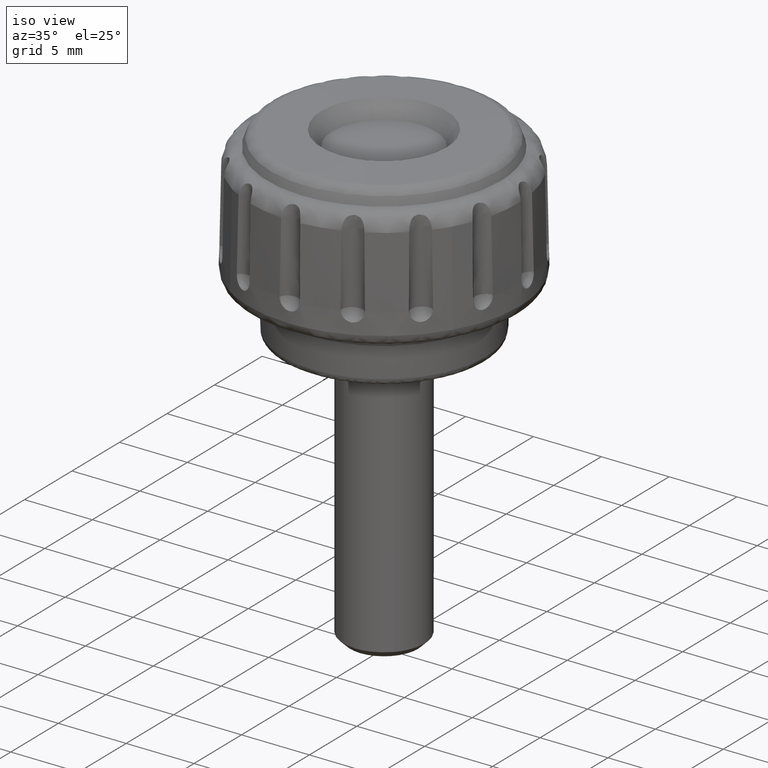
[diagram: clean part render]
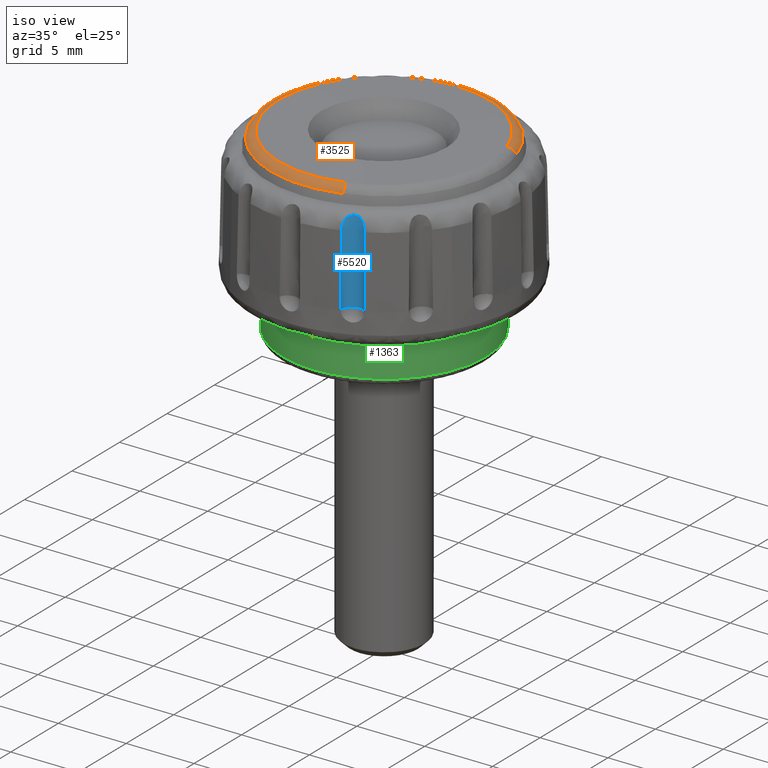
[diagram: same view with three faces highlighted in distinct colors, each labeled with its STEP entity id]
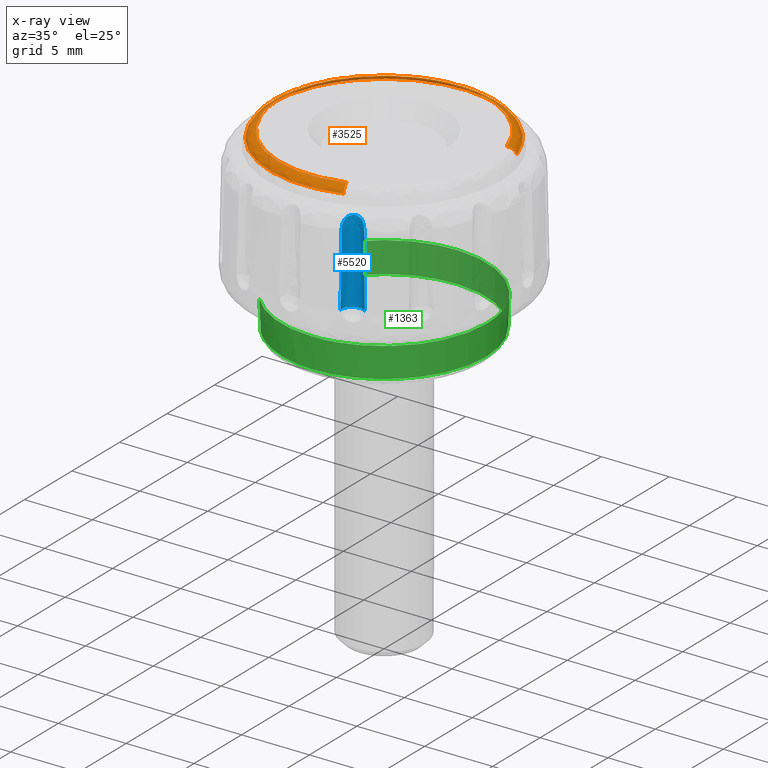
[diagram: x-ray of the same camera — body ghosted, the three highlighted faces saturated]
A machine part, iso view with three faces highlighted in distinct colors.
The next image is the same camera in x-ray (body ghosted, the three faces saturated) — at least one of them is partly hidden behind the body in this view.
Their STEP definitions:

[orange] entity #3525 — the highlighted face is a freeform B-spline surface patch.
#1694=CARTESIAN_POINT('',(5.414821336873560,6.402738464486085,13.389539658126751));
#1695=VERTEX_POINT('',#1694);
#1696=CARTESIAN_POINT('',(7.975012947704043,2.591238784501803,13.389539658211490));
#1697=VERTEX_POINT('',#1696);
#1698=CARTESIAN_POINT('',(5.414821336873560,6.402738464486085,13.389539658126751));
#1699=CARTESIAN_POINT('',(5.692270043470310,6.168116192450658,13.389539658133700));
#1700=CARTESIAN_POINT('',(6.199107883033925,5.679564921565262,13.389539658147280));
#1701=CARTESIAN_POINT('',(6.945154094198713,4.753563351705484,13.389539658169550));
#1702=CARTESIAN_POINT('',(7.548274298740307,3.726090637282110,13.389539658191190));
#1703=CARTESIAN_POINT('',(7.862738193179157,2.936809116481841,13.389539658205591));
#1704=CARTESIAN_POINT('',(7.975012947704043,2.591238784501803,13.389539658211490));
#1705=B_SPLINE_CURVE_WITH_KNOTS('',3,(#1698,#1699,#1700,#1701,#1702,#1703,#1704),.UNSPECIFIED.,.F.,.U.,(4,1,1,1,4),(1.895869E-009,1.090058220259982,2.107448491156674,3.560857228271222,4.650915446635560),.UNSPECIFIED.);
#1706=EDGE_CURVE('',#1695,#1697,#1705,.T.);
#1718=CARTESIAN_POINT('',(2.591238784496045,-7.975012947737337,13.389539658129380));
#1719=VERTEX_POINT('',#1718);
#1735=CARTESIAN_POINT('',(-8.385424852422510,0.0,13.389539658003200));
#1736=VERTEX_POINT('',#1735);
#1737=CARTESIAN_POINT('',(2.591238784496045,-7.975012947737337,13.389539658129380));
#1738=CARTESIAN_POINT('',(2.101914565130405,-8.134062774378068,13.389539658119100));
#1739=CARTESIAN_POINT('',(1.154358657495383,-8.347977684298479,13.389539658099890));
#1740=CARTESIAN_POINT('',(-0.206803470529369,-8.414849852517959,13.389539658074611));
#1741=CARTESIAN_POINT('',(-1.356173428928150,-8.297355528707742,13.389539658054909));
#1742=CARTESIAN_POINT('',(-2.420596873479457,-8.051454132313634,13.389539658037730));
#1743=CARTESIAN_POINT('',(-3.350113227359907,-7.709843182778731,13.389539658024370));
#1744=CARTESIAN_POINT('',(-4.193704848513966,-7.277377770061983,13.389539658012369));
#1745=CARTESIAN_POINT('',(-4.938137706932062,-6.796961480538122,13.389539658004249));
#1746=CARTESIAN_POINT('',(-5.771870893636117,-6.123003543632566,13.389539657994280));
#1747=CARTESIAN_POINT('',(-6.558051483438312,-5.274596795407038,13.389539657988349));
#1748=CARTESIAN_POINT('',(-7.175225603682568,-4.372601394976647,13.389539657985170));
#1749=CARTESIAN_POINT('',(-7.601606209990404,-3.572523727590739,13.389539657984860));
#1750=CARTESIAN_POINT('',(-7.985787388006455,-2.638647478839822,13.389539657986081));
#1751=CARTESIAN_POINT('',(-8.301536928928821,-1.440647911548090,13.389539657992220));
#1752=CARTESIAN_POINT('',(-8.385464570237801,-0.493941349584060,13.389539657998100));
#1753=CARTESIAN_POINT('',(-8.385424852422510,0.0,13.389539658003200));
#1754=B_SPLINE_CURVE_WITH_KNOTS('',3,(#1737,#1738,#1739,#1740,#1741,#1742,#1743,#1744,#1745,#1746,#1747,#1748,#1749,#1750,#1751,#1752,#1753),.UNSPECIFIED.,.F.,.U.,(4,1,1,1,1,1,1,1,1,1,1,1,1,1,4),(7.043008E-009,1.543563370954519,2.901913743118245,4.075033916520443,5.001179717777895,6.174293965447166,7.038698785974511,7.841354916268639,8.829235759516969,10.249321594123311,11.298955682087261,12.101614565872779,12.966019264739391,14.324369073423680,15.806189173172751),.UNSPECIFIED.);
#1755=EDGE_CURVE('',#1719,#1736,#1754,.T.);
#1757=CARTESIAN_POINT('',(-6.082572278006696,5.772145566310559,13.389539657965649));
#1758=VERTEX_POINT('',#1757);
#1759=CARTESIAN_POINT('',(-8.385424852422510,0.0,13.389539658003200));
#1760=CARTESIAN_POINT('',(-8.385520223324088,0.580276096392478,13.389539657996041));
#1761=CARTESIAN_POINT('',(-8.273100137228353,1.657874707127856,13.389539657984381));
#1762=CARTESIAN_POINT('',(-7.825605130125708,3.122352468292502,13.389539657972771));
#1763=CARTESIAN_POINT('',(-7.131122540664201,4.504492578265316,13.389539657966040));
#1764=CARTESIAN_POINT('',(-6.493489455450496,5.339270169290322,13.389539657964940));
#1765=CARTESIAN_POINT('',(-6.082572278006696,5.772145566310559,13.389539657965649));
#1766=B_SPLINE_CURVE_WITH_KNOTS('',3,(#1759,#1760,#1761,#1762,#1763,#1764,#1765),.UNSPECIFIED.,.F.,.U.,(4,1,1,1,4),(3.802307E-009,1.740806810639394,3.232920822088767,4.575832440998095,6.366376701414596),.UNSPECIFIED.);
#1767=EDGE_CURVE('',#1736,#1758,#1766,.T.);
#1868=CARTESIAN_POINT('',(-6.082572278006696,5.772145566310559,13.389539657965649));
#1869=CARTESIAN_POINT('',(-5.832314974260923,6.035878601163017,13.389539657966051));
#1870=CARTESIAN_POINT('',(-5.285267559768599,6.541967546954047,13.389539657967861));
#1871=CARTESIAN_POINT('',(-4.499752625833379,7.095098337867120,13.389539657972589));
#1872=CARTESIAN_POINT('',(-3.704606732651509,7.536823972230909,13.389539657978640));
#1873=CARTESIAN_POINT('',(-2.885765491910017,7.895154719369325,13.389539657986370));
#1874=CARTESIAN_POINT('',(-1.727750953757883,8.242394144703827,13.389539657999180));
#1875=CARTESIAN_POINT('',(-0.477077991373110,8.408020034399574,13.389539658015410));
#1876=CARTESIAN_POINT('',(0.681739393871548,8.375517388026280,13.389539658032870));
#1877=CARTESIAN_POINT('',(1.599123440573961,8.245938485486233,13.389539658047790));
#1878=CARTESIAN_POINT('',(2.627738801660113,7.993367047022104,13.389539658066480));
#1879=CARTESIAN_POINT('',(3.966731282316822,7.454330460577391,13.389539658091630));
#1880=CARTESIAN_POINT('',(4.922784360844830,6.819042411824140,13.389539658115361));
#1881=CARTESIAN_POINT('',(5.414821336873560,6.402738464486085,13.389539658126751));
#1882=B_SPLINE_CURVE_WITH_KNOTS('',3,(#1868,#1869,#1870,#1871,#1872,#1873,#1874,#1875,#1876,#1877,#1878,#1879,#1880,#1881),.UNSPECIFIED.,.F.,.U.,(4,1,1,1,1,1,1,1,1,1,1,4),(0.000000014604066,1.090713818442433,2.231006416898804,2.875524075187183,3.817509027033593,4.908229531955397,6.494710224431278,7.585427307883298,8.378682247765443,9.271086721831788,10.758432554126241,12.691969510726810),.UNSPECIFIED.);
#1883=EDGE_CURVE('',#1758,#1695,#1882,.T.);
#3413=CARTESIAN_POINT('',(2.384433441770142,-7.338531549226091,13.850030545256441));
#3414=CARTESIAN_POINT('',(-4.954098107455950,-9.722964990996232,13.850030545256441));
#3415=CARTESIAN_POINT('',(-7.338531549226091,-2.384433441770143,13.850030545256441));
#3416=CARTESIAN_POINT('',(-9.722964990996232,4.954098107455950,13.850030545256441));
#3417=CARTESIAN_POINT('',(-2.384433441770143,7.338531549226091,13.850030545256441));
#3418=CARTESIAN_POINT('',(4.954098107455947,9.722964990996232,13.850030545256441));
#3419=CARTESIAN_POINT('',(7.338531549226091,2.384433441770144,13.850030545256441));
#3420=CARTESIAN_POINT('',(2.547726725202221,-7.841096599376293,13.858676634144937));
#3421=CARTESIAN_POINT('',(-5.293369874174072,-10.388823324578514,13.858676634144933));
#3422=CARTESIAN_POINT('',(-7.841096599376293,-2.547726725202221,13.858676634144937));
#3423=CARTESIAN_POINT('',(-10.388823324578514,5.293369874174072,13.858676634144933));
#3424=CARTESIAN_POINT('',(-2.547726725202221,7.841096599376293,13.858676634144937));
#3425=CARTESIAN_POINT('',(5.293369874174069,10.388823324578514,13.858676634144933));
#3426=CARTESIAN_POINT('',(7.841096599376293,2.547726725202223,13.858676634144937));
#3427=CARTESIAN_POINT('',(2.595017006581148,-7.986641119844603,13.352819438141628));
#3428=CARTESIAN_POINT('',(-5.391624113263453,-10.581658126425751,13.352819438141628));
#3429=CARTESIAN_POINT('',(-7.986641119844603,-2.595017006581149,13.352819438141628));
#3430=CARTESIAN_POINT('',(-10.581658126425751,5.391624113263453,13.352819438141628));
#3431=CARTESIAN_POINT('',(-2.595017006581149,7.986641119844603,13.352819438141628));
#3432=CARTESIAN_POINT('',(5.391624113263453,10.581658126425751,13.352819438141628));
#3433=CARTESIAN_POINT('',(7.986641119844603,2.595017006581149,13.352819438141628));
#3441=(BOUNDED_SURFACE()B_SPLINE_SURFACE(2,2,((#3413,#3420,#3427),(#3414,#3421,#3428),(#3415,#3422,#3429),(#3416,#3423,#3430),(#3417,#3424,#3431),(#3418,#3425,#3432),(#3419,#3426,#3433)),.UNSPECIFIED.,.F.,.F.,.U.)B_SPLINE_SURFACE_WITH_KNOTS((3,2,2,3),(3,3),(0.0,13.913684467599440,27.827368935198880,41.741053402798329),(0.0,0.938299722555659),.UNSPECIFIED.)GEOMETRIC_REPRESENTATION_ITEM()RATIONAL_B_SPLINE_SURFACE(((0.921574484694217,0.734439610332397,0.918941042594707),(0.651651567495779,0.519327228838043,0.649789442729353),(0.921574484694217,0.734439610332397,0.918941042594707),(0.651651567495779,0.519327228838043,0.649789442729353),(0.921574484694217,0.734439610332397,0.918941042594707),(0.651651567495779,0.519327228838043,0.649789442729353),(0.921574484694217,0.734439610332397,0.918941042594707)))REPRESENTATION_ITEM('')SURFACE());
#3442=ORIENTED_EDGE('',*,*,#1755,.F.);
#3443=CARTESIAN_POINT('',(2.396359510683250,-7.375236211573055,13.849597830774400));
#3444=VERTEX_POINT('',#3443);
#3445=CARTESIAN_POINT('',(2.396359510683250,-7.375236211573055,13.849597830774400));
#3446=CARTESIAN_POINT('',(2.415004474062089,-7.432619508879011,13.847272557840579));
#3447=CARTESIAN_POINT('',(2.449451199699297,-7.538635630090705,13.828320594003660));
#3448=CARTESIAN_POINT('',(2.496216768917148,-7.682565253545984,13.762827638112260));
#3449=CARTESIAN_POINT('',(2.536300537211601,-7.805930408035989,13.668203599241490));
#3450=CARTESIAN_POINT('',(2.569530505301871,-7.908201734196592,13.542960693970620));
#3451=CARTESIAN_POINT('',(2.585316163527856,-7.956784994710094,13.442228860525439));
#3452=CARTESIAN_POINT('',(2.591238784496045,-7.975012947737337,13.389539658129380));
#3453=B_SPLINE_CURVE_WITH_KNOTS('',3,(#3445,#3446,#3447,#3448,#3449,#3450,#3451,#3452),.UNSPECIFIED.,.F.,.U.,(4,1,1,1,1,4),(0.000000033017601,0.181140313862165,0.336405627196721,0.491667529644384,0.659872759382642,0.828073123823436),.UNSPECIFIED.);
#3454=EDGE_CURVE('',#3444,#1719,#3453,.T.);
#3455=ORIENTED_EDGE('',*,*,#3454,.F.);
#3456=CARTESIAN_POINT('',(-7.754782240562751,0.0,13.849597831981299));
#3457=VERTEX_POINT('',#3456);
#3458=CARTESIAN_POINT('',(2.396359510683250,-7.375236211573055,13.849597830774400));
#3459=CARTESIAN_POINT('',(1.943836306092066,-7.522326076957984,13.849597830873099));
#3460=CARTESIAN_POINT('',(1.160763701328386,-7.699090299841733,13.849597831036620));
#3461=CARTESIAN_POINT('',(0.133306011114217,-7.768529684173184,13.849597831235821));
#3462=CARTESIAN_POINT('',(-0.704325518175037,-7.735618226231230,13.849597831389760));
#3463=CARTESIAN_POINT('',(-1.535011161841607,-7.619683510828196,13.849597831534529));
#3464=CARTESIAN_POINT('',(-2.549588780271728,-7.353635523636700,13.849597831699660));
#3465=CARTESIAN_POINT('',(-3.462999123017084,-6.963413063965188,13.849597831834050));
#3466=CARTESIAN_POINT('',(-4.267208487202566,-6.489360511922109,13.849597831940070));
#3467=CARTESIAN_POINT('',(-4.945631792291952,-5.996478202576391,13.849597832020770));
#3468=CARTESIAN_POINT('',(-5.589951846819381,-5.400869471411132,13.849597832085241));
#3469=CARTESIAN_POINT('',(-6.208831348753225,-4.676261732193892,13.849597832133121));
#3470=CARTESIAN_POINT('',(-6.696311991008103,-3.946688762581557,13.849597832155110));
#3471=CARTESIAN_POINT('',(-7.163555114844384,-3.029707298468995,13.849597832156590));
#3472=CARTESIAN_POINT('',(-7.480796722871202,-2.129175443322603,13.849597832130909));
#3473=CARTESIAN_POINT('',(-7.703155348230171,-1.065842757252812,13.849597832072270));
#3474=CARTESIAN_POINT('',(-7.754809551931253,-0.399694048500855,13.849597832019031));
#3475=CARTESIAN_POINT('',(-7.754782240562751,0.0,13.849597831981299));
#3476=B_SPLINE_CURVE_WITH_KNOTS('',3,(#3458,#3459,#3460,#3461,#3462,#3463,#3464,#3465,#3466,#3467,#3468,#3469,#3470,#3471,#3472,#3473,#3474,#3475),.UNSPECIFIED.,.F.,.U.,(4,1,1,1,1,1,1,1,1,1,1,1,1,1,1,4),(0.000000012705033,1.427477347091116,2.398170500541786,3.083367242094488,3.939861561820152,4.910556470004606,6.223844008090383,6.909043575691629,7.708410447495186,8.736204223587841,9.535597656319936,10.563393764244280,11.362786013465010,12.618973437305980,13.418373250395840,14.617453181398290),.UNSPECIFIED.);
#3477=EDGE_CURVE('',#3444,#3457,#3476,.T.);
#3478=ORIENTED_EDGE('',*,*,#3477,.T.);
#3479=CARTESIAN_POINT('',(7.375236206335931,2.396359508729125,13.849597830991099));
#3480=VERTEX_POINT('',#3479);
#3481=CARTESIAN_POINT('',(-7.754782240562751,0.0,13.849597831981299));
#3482=CARTESIAN_POINT('',(-7.754788769488837,0.299768890629783,13.849597832000381));
#3483=CARTESIAN_POINT('',(-7.716668641293842,0.956407040254186,13.849597832039169));
#3484=CARTESIAN_POINT('',(-7.550856175334747,1.842477838378515,13.849597832083161));
#3485=CARTESIAN_POINT('',(-7.271251933157443,2.743262848363950,13.849597832118871));
#3486=CARTESIAN_POINT('',(-6.937330506236038,3.502867875438908,13.849597832142500));
#3487=CARTESIAN_POINT('',(-6.441079625953957,4.354949578983443,13.849597832158780));
#3488=CARTESIAN_POINT('',(-5.867982799944887,5.106282281542965,13.849597832163520));
#3489=CARTESIAN_POINT('',(-5.138869150237608,5.833132203581564,13.849597832154490));
#3490=CARTESIAN_POINT('',(-4.349352241494106,6.448904487998877,13.849597832134330));
#3491=CARTESIAN_POINT('',(-3.446390592680822,6.974427677339782,13.849597832099141));
#3492=CARTESIAN_POINT('',(-2.533015368464956,7.348809065280794,13.849597832054350));
#3493=CARTESIAN_POINT('',(-1.568735692067749,7.615984698510808,13.849597831998100));
#3494=CARTESIAN_POINT('',(-0.647840529890849,7.748842972037976,13.849597831937579));
#3495=CARTESIAN_POINT('',(0.395520485978719,7.765804044402158,13.849597831859370));
#3496=CARTESIAN_POINT('',(1.277585311588116,7.667718511852957,13.849597831786580));
#3497=CARTESIAN_POINT('',(2.154182240087069,7.462930175042754,13.849597831707641));
#3498=CARTESIAN_POINT('',(2.898354525006386,7.208961207574085,13.849597831634631));
#3499=CARTESIAN_POINT('',(3.792178998954449,6.791932506587036,13.849597831541340));
#3500=CARTESIAN_POINT('',(4.659409356812392,6.233784698479254,13.849597831440040));
#3501=CARTESIAN_POINT('',(5.424086630231938,5.565474299531679,13.849597831339880));
#3502=CARTESIAN_POINT('',(6.136793708266869,4.784025105466252,13.849597831236540));
#3503=CARTESIAN_POINT('',(6.831377340605168,3.765600247781952,13.849597831118819));
#3504=CARTESIAN_POINT('',(7.220895064801534,2.871544525788539,13.849597831033391));
#3505=CARTESIAN_POINT('',(7.375236206335931,2.396359508729125,13.849597830991099));
#3506=B_SPLINE_CURVE_WITH_KNOTS('',3,(#3481,#3482,#3483,#3484,#3485,#3486,#3487,#3488,#3489,#3490,#3491,#3492,#3493,#3494,#3495,#3496,#3497,#3498,#3499,#3500,#3501,#3502,#3503,#3504,#3505),.UNSPECIFIED.,.F.,.U.,(4,1,1,1,1,1,1,1,1,1,1,1,1,1,1,1,1,1,1,1,1,1,4),(0.000000040846157,0.899308017101120,1.969915086405344,2.697933684561804,3.725732323281932,4.453750069207459,5.652838555036055,6.552157866736648,7.537125031952897,8.650558840035636,9.678360870108270,10.492010444428660,11.648253423275440,12.461920704169669,13.618187203362281,14.303391747699241,15.159881442062780,15.973547930362230,17.258288496551788,18.243256317715161,19.014101609722321,20.427300886962779,21.926158098392300),.UNSPECIFIED.);
#3507=EDGE_CURVE('',#3457,#3480,#3506,.T.);
#3508=ORIENTED_EDGE('',*,*,#3507,.T.);
#3509=CARTESIAN_POINT('',(7.375236206335931,2.396359508729125,13.849597830991099));
#3510=CARTESIAN_POINT('',(7.453124070354507,2.421666809685752,13.846487268261750));
#3511=CARTESIAN_POINT('',(7.571117355317080,2.460005151770489,13.819362612684319));
#3512=CARTESIAN_POINT('',(7.709783269698409,2.505060438327650,13.742993876473459));
#3513=CARTESIAN_POINT('',(7.810743225980091,2.537864316517121,13.660957696075361));
#3514=CARTESIAN_POINT('',(7.905854067585961,2.568767702184450,13.546648928407890));
#3515=CARTESIAN_POINT('',(7.955385959893025,2.584861589573936,13.446284261039160));
#3516=CARTESIAN_POINT('',(7.975012947704043,2.591238784501803,13.389539658211490));
#3517=B_SPLINE_CURVE_WITH_KNOTS('',3,(#3509,#3510,#3511,#3512,#3513,#3514,#3515,#3516),.UNSPECIFIED.,.F.,.U.,(4,1,1,1,1,4),(0.000000033019401,0.245836215791299,0.375221020841468,0.491667533265567,0.646932847743238,0.828073129921367),.UNSPECIFIED.);
#3518=EDGE_CURVE('',#3480,#1697,#3517,.T.);
#3519=ORIENTED_EDGE('',*,*,#3518,.T.);
#3520=ORIENTED_EDGE('',*,*,#1706,.F.);
#3521=ORIENTED_EDGE('',*,*,#1883,.F.);
#3522=ORIENTED_EDGE('',*,*,#1767,.F.);
#3523=EDGE_LOOP('',(#3442,#3455,#3478,#3508,#3519,#3520,#3521,#3522));
#3524=FACE_OUTER_BOUND('',#3523,.T.);
#3525=ADVANCED_FACE('',(#3524),#3441,.T.);

[blue] entity #5520 — the highlighted face is a freeform B-spline surface patch.
#2975=CARTESIAN_POINT('',(4.637635976504630,-8.684960734353240,11.624295663130360));
#2976=VERTEX_POINT('',#2975);
#2985=CARTESIAN_POINT('',(4.721718193697179,-8.759899150376819,6.399993999999800));
#2986=VERTEX_POINT('',#2985);
#2987=CARTESIAN_POINT('',(4.637635976504630,-8.684960734353240,11.624295663130360));
#2988=CARTESIAN_POINT('',(4.721718193697179,-8.759899150376819,6.399993999999800));
#2989=QUASI_UNIFORM_CURVE('',1,(#2987,#2988),.UNSPECIFIED.,.F.,.U.);
#2990=EDGE_CURVE('',#2976,#2986,#2989,.T.);
#2992=CARTESIAN_POINT('',(3.350427567302120,-9.370437073142609,6.399993999999790));
#2993=VERTEX_POINT('',#2992);
#3040=CARTESIAN_POINT('',(3.350999456178780,-9.257808220767871,11.624295663130360));
#3041=VERTEX_POINT('',#3040);
#3042=CARTESIAN_POINT('',(3.350427567302120,-9.370437073142609,6.399993999999790));
#3043=CARTESIAN_POINT('',(3.350999456178780,-9.257808220767871,11.624295663130360));
#3044=QUASI_UNIFORM_CURVE('',1,(#3042,#3043),.UNSPECIFIED.,.F.,.U.);
#3045=EDGE_CURVE('',#2993,#3041,#3044,.T.);
#4674=CARTESIAN_POINT('',(4.637635976504629,-8.684960734353243,11.624295663130360));
#4675=CARTESIAN_POINT('',(4.636608645985206,-8.684167511551113,11.682749642530091));
#4676=CARTESIAN_POINT('',(4.631943738530557,-8.680521373731477,11.740204651719431));
#4677=CARTESIAN_POINT('',(4.615203353572197,-8.668174489181780,11.853172620679290));
#4678=CARTESIAN_POINT('',(4.603133110333394,-8.659465721878783,11.908685527784311));
#4679=CARTESIAN_POINT('',(4.578344029615351,-8.643252776486085,11.990376478088070));
#4680=CARTESIAN_POINT('',(4.568896856117378,-8.637291142342980,12.017481844091940));
#4681=CARTESIAN_POINT('',(4.547712017052576,-8.624664469937367,12.070368389816631));
#4682=CARTESIAN_POINT('',(4.536012809522652,-8.618020120463093,12.096092910828689));
#4683=CARTESIAN_POINT('',(4.497309706914022,-8.597524428084341,12.171068356548171));
#4684=CARTESIAN_POINT('',(4.466691996859955,-8.583045603804877,12.218207881241471));
#4685=CARTESIAN_POINT('',(4.393660993014156,-8.555596775306643,12.305781290728110));
#4686=CARTESIAN_POINT('',(4.352513500512250,-8.543134277504247,12.344681769097591));
#4687=CARTESIAN_POINT('',(4.283224876110658,-8.529211357609006,12.395845708990979));
#4688=CARTESIAN_POINT('',(4.258651526324845,-8.525358352365243,12.411803205833200));
#4689=CARTESIAN_POINT('',(4.208226120016726,-8.519988092044391,12.440502143775941));
#4690=CARTESIAN_POINT('',(4.182324087898212,-8.518440156808193,12.453319384359650));
#4691=CARTESIAN_POINT('',(4.129239264947127,-8.517971463507708,12.476120747023611));
#4692=CARTESIAN_POINT('',(4.102056937989508,-8.519048630257085,12.486105865227090));
#4693=CARTESIAN_POINT('',(4.046453923172512,-8.524246670060718,12.503350211180210));
#4694=CARTESIAN_POINT('',(4.018151977741957,-8.528387883606992,12.510544464145100));
#4695=CARTESIAN_POINT('',(3.962332865307478,-8.539668945338006,12.521898031999740));
#4696=CARTESIAN_POINT('',(3.934579587820672,-8.546824589760259,12.526135580710680));
#4697=CARTESIAN_POINT('',(3.879441002225449,-8.564300653771433,12.531865202224751));
#4698=CARTESIAN_POINT('',(3.851831298322207,-8.574729697916323,12.533350443017881));
#4699=CARTESIAN_POINT('',(3.771725631705714,-8.610159010775487,12.533539481046770));
#4700=CARTESIAN_POINT('',(3.721706240920300,-8.639211890464837,12.528226050742820));
#4701=CARTESIAN_POINT('',(3.628683143850100,-8.707524915828502,12.505768157004900));
#4702=CARTESIAN_POINT('',(3.587831846751444,-8.745197260634022,12.489111583426441));
#4703=CARTESIAN_POINT('',(3.534058414977153,-8.805420232295919,12.454915753429370));
#4704=CARTESIAN_POINT('',(3.517459891965104,-8.826081186817071,12.441951644652720));
#4705=CARTESIAN_POINT('',(3.487550244878935,-8.867064979121745,12.413510569114621));
#4706=CARTESIAN_POINT('',(3.474094989028729,-8.887544204536820,12.397949103857099));
#4707=CARTESIAN_POINT('',(3.449827905439580,-8.928160046990223,12.364041340103981));
#4708=CARTESIAN_POINT('',(3.438962899778537,-8.948420044870893,12.345562336216769));
#4709=CARTESIAN_POINT('',(3.419947380297305,-8.987472173003356,12.306498559586441));
#4710=CARTESIAN_POINT('',(3.411757455660913,-9.006301317099826,12.285907748938010));
#4711=CARTESIAN_POINT('',(3.390370963646477,-9.060461988132118,12.221028789507310));
#4712=CARTESIAN_POINT('',(3.380297723866989,-9.093690702614010,12.173132669877541));
#4713=CARTESIAN_POINT('',(3.365897630435474,-9.150678346338045,12.073093106439350));
#4714=CARTESIAN_POINT('',(3.361421624852948,-9.174776860291082,12.020708147778620));
#4715=CARTESIAN_POINT('',(3.356787578316264,-9.204398222888218,11.938823318943470));
#4716=CARTESIAN_POINT('',(3.355597748397192,-9.213208461089113,11.910853656892170));
#4717=CARTESIAN_POINT('',(3.353733682005851,-9.228410706901057,11.854547716690540));
#4718=CARTESIAN_POINT('',(3.353055469710511,-9.234819928558087,11.826202720674781));
#4719=CARTESIAN_POINT('',(3.351508862855746,-9.250586763207785,11.740614259449750));
#4720=CARTESIAN_POINT('',(3.351097516915105,-9.256512385369920,11.682822376165900));
#4721=CARTESIAN_POINT('',(3.350999456178780,-9.257808220767871,11.624295663130360));
#4722=B_SPLINE_CURVE_WITH_KNOTS('',3,(#4674,#4675,#4676,#4677,#4678,#4679,#4680,#4681,#4682,#4683,#4684,#4685,#4686,#4687,#4688,#4689,#4690,#4691,#4692,#4693,#4694,#4695,#4696,#4697,#4698,#4699,#4700,#4701,#4702,#4703,#4704,#4705,#4706,#4707,#4708,#4709,#4710,#4711,#4712,#4713,#4714,#4715,#4716,#4717,#4718,#4719,#4720,#4721),.UNSPECIFIED.,.F.,.U.,(4,2,2,2,2,2,2,2,2,2,2,2,2,2,2,2,2,2,2,2,2,2,2,4),(0.0,0.062499999999999,0.124999999999998,0.156249999999998,0.187499999999998,0.249999999999999,0.312500000000000,0.343750000000000,0.375000000000001,0.406250000000001,0.437500000000001,0.468750000000001,0.500000000000001,0.562500000000000,0.625000000000000,0.656249999999999,0.687499999999999,0.718749999999998,0.749999999999998,0.812499999999999,0.874999999999999,0.906249999999999,0.937499999999999,1.0),.UNSPECIFIED.);
#4723=EDGE_CURVE('',#2976,#3041,#4722,.T.);
#4906=CARTESIAN_POINT('',(4.721718193697179,-8.759899150376819,6.399993999999800));
#4907=CARTESIAN_POINT('',(4.675719025116258,-8.712662031945433,6.399993999999809));
#4908=CARTESIAN_POINT('',(4.571941409750538,-8.629667085152812,6.399993999999782));
#4909=CARTESIAN_POINT('',(4.409167326279327,-8.555488498914071,6.399993999999812));
#4910=CARTESIAN_POINT('',(4.230234746738532,-8.515802014811493,6.399993999999799));
#4911=CARTESIAN_POINT('',(4.061377610376477,-8.515874018595659,6.399993999999807));
#4912=CARTESIAN_POINT('',(3.857899357467067,-8.563209871975122,6.399993999999781));
#4913=CARTESIAN_POINT('',(3.676115786808353,-8.659105468357103,6.399993999999933));
#4914=CARTESIAN_POINT('',(3.529479568679184,-8.801568136462977,6.399993999999575));
#4915=CARTESIAN_POINT('',(3.423139130972003,-8.963376365129840,6.399993999999895));
#4916=CARTESIAN_POINT('',(3.355840792574240,-9.151526069232100,6.399993999999756));
#4917=CARTESIAN_POINT('',(3.345767689123659,-9.299584130775392,6.399993999999817));
#4918=CARTESIAN_POINT('',(3.350427567302120,-9.370437073142609,6.399993999999790));
#4919=B_SPLINE_CURVE_WITH_KNOTS('',3,(#4906,#4907,#4908,#4909,#4910,#4911,#4912,#4913,#4914,#4915,#4916,#4917,#4918),.UNSPECIFIED.,.F.,.U.,(4,1,1,1,1,1,1,1,1,1,4),(0.000000102793341,0.197800370908435,0.395624947497482,0.532575617134633,0.745613527162266,0.897772689181948,1.156440162094107,1.354252789535890,1.506423355617875,1.734678940966736,1.947696420817156),.UNSPECIFIED.);
#4920=EDGE_CURVE('',#2986,#2993,#4919,.T.);
#5496=CARTESIAN_POINT('',(4.744843077628078,-8.784662067277354,12.686751184327020));
#5497=CARTESIAN_POINT('',(4.744843077628078,-8.784662067277354,6.242825070391609));
#5498=CARTESIAN_POINT('',(4.353655481496404,-8.347565545577526,12.686751184327020));
#5499=CARTESIAN_POINT('',(4.353655481496404,-8.347565545577526,6.242825070391609));
#5500=CARTESIAN_POINT('',(3.819156740787259,-8.589210327912472,12.686751184327020));
#5501=CARTESIAN_POINT('',(3.819156740787259,-8.589210327912472,6.242825070391609));
#5502=CARTESIAN_POINT('',(3.284658000078113,-8.830855110247418,12.686751184327020));
#5503=CARTESIAN_POINT('',(3.284658000078113,-8.830855110247418,6.242825070391609));
#5504=CARTESIAN_POINT('',(3.354391853891846,-9.413279606883377,12.686751184327020));
#5505=CARTESIAN_POINT('',(3.354391853891846,-9.413279606883377,6.242825070391609));
#5513=(BOUNDED_SURFACE()B_SPLINE_SURFACE(1,2,((#5496,#5498,#5500,#5502,#5504),(#5497,#5499,#5501,#5503,#5505)),.UNSPECIFIED.,.F.,.F.,.U.)B_SPLINE_SURFACE_WITH_KNOTS((2,2),(3,2,3),(0.0,6.443926113935414),(0.0,1.0,2.0),.UNSPECIFIED.)GEOMETRIC_REPRESENTATION_ITEM()RATIONAL_B_SPLINE_SURFACE(((1.0,0.806444604267483,1.0,0.806444604267483,1.0),(1.0,0.806444604267483,1.0,0.806444604267483,1.0)))REPRESENTATION_ITEM('')SURFACE());
#5514=ORIENTED_EDGE('',*,*,#4723,.T.);
#5515=ORIENTED_EDGE('',*,*,#3045,.F.);
#5516=ORIENTED_EDGE('',*,*,#4920,.F.);
#5517=ORIENTED_EDGE('',*,*,#2990,.F.);
#5518=EDGE_LOOP('',(#5514,#5515,#5516,#5517));
#5519=FACE_OUTER_BOUND('',#5518,.T.);
#5520=ADVANCED_FACE('',(#5519),#5513,.F.);

[green] entity #1363 — the highlighted face is a freeform B-spline surface patch.
#1202=CARTESIAN_POINT('',(-5.792899536109339,-4.784508170398429,0.730916579139340));
#1203=CARTESIAN_POINT('',(-5.736246366090062,-4.849980544966996,0.730916579139340));
#1204=CARTESIAN_POINT('',(-5.395340609124615,-5.243955134650637,0.730916579139339));
#1205=CARTESIAN_POINT('',(-5.074552996564850,-5.537902824277773,0.730916579139339));
#1206=CARTESIAN_POINT('',(0.463349827712923,-10.612455820842623,0.730916579139339));
#1207=CARTESIAN_POINT('',(5.537902824277773,-5.074552996564850,0.730916579139339));
#1208=CARTESIAN_POINT('',(10.612455820842623,0.463349827712923,0.730916579139339));
#1209=CARTESIAN_POINT('',(5.074552996564850,5.537902824277773,0.730916579139339));
#1210=CARTESIAN_POINT('',(-0.463349827712923,10.612455820842623,0.730916579139339));
#1211=CARTESIAN_POINT('',(-5.592913992592801,5.014518840928906,0.730916579139339));
#1212=CARTESIAN_POINT('',(-5.647433333758549,4.955021420442027,0.730916579139339));
#1213=CARTESIAN_POINT('',(-5.840410324607360,-4.823748580893018,3.083585426800838));
#1214=CARTESIAN_POINT('',(-5.783292510455770,-4.889757930791678,3.083585426800838));
#1215=CARTESIAN_POINT('',(-5.439590795919165,-5.286963725036589,3.083585426800838));
#1216=CARTESIAN_POINT('',(-5.116172225871167,-5.583322243027707,3.083585426800838));
#1217=CARTESIAN_POINT('',(0.467150017156540,-10.699494468898873,3.083585426800838));
#1218=CARTESIAN_POINT('',(5.583322243027707,-5.116172225871167,3.083585426800838));
#1219=CARTESIAN_POINT('',(10.699494468898873,0.467150017156540,3.083585426800838));
#1220=CARTESIAN_POINT('',(5.116172225871167,5.583322243027707,3.083585426800838));
#1221=CARTESIAN_POINT('',(-0.467150017156540,10.699494468898873,3.083585426800838));
#1222=CARTESIAN_POINT('',(-5.638784588506528,5.055645696760887,3.083585426800838));
#1223=CARTESIAN_POINT('',(-5.693751073088287,4.995660304862919,3.083585426800837));
#1231=(BOUNDED_SURFACE()B_SPLINE_SURFACE(2,1,((#1202,#1213),(#1203,#1214),(#1204,#1215),(#1205,#1216),(#1206,#1217),(#1207,#1218),(#1208,#1219),(#1209,#1220),(#1210,#1221),(#1211,#1222),(#1212,#1223)),.UNSPECIFIED.,.F.,.F.,.U.)B_SPLINE_SURFACE_WITH_KNOTS((3,1,2,2,2,1,3),(2,2),(0.0,0.193395946997685,1.197170317675588,13.744349951149371,26.291529584623159,38.838709218096952,39.031936614747451),(0.0,2.353475683238807),.UNSPECIFIED.)GEOMETRIC_REPRESENTATION_ITEM()RATIONAL_B_SPLINE_SURFACE(((0.949301742261709,0.949301742261709),(0.953093930226185,0.953093930226185),(0.976568542494924,0.976568542494924),(1.0,1.0),(0.707106781186548,0.707106781186548),(1.0,1.0),(0.707106781186548,0.707106781186548),(1.0,1.0),(0.707106781186548,0.707106781186548),(1.004510574951595,1.004510574951595),(1.009021149903190,1.009021149903190)))REPRESENTATION_ITEM('')SURFACE());
#1232=CARTESIAN_POINT('',(-0.047517076069702,-7.571220553513071,3.025308744207385));
#1233=VERTEX_POINT('',#1232);
#1234=CARTESIAN_POINT('',(-5.725356476537243,-4.954144351750448,3.025614784948988));
#1235=VERTEX_POINT('',#1234);
#1236=CARTESIAN_POINT('',(-0.047517076069702,-7.571220553513071,3.025308744207385));
#1237=CARTESIAN_POINT('',(-0.567795492726709,-7.568023956332477,3.025309548152403));
#1238=CARTESIAN_POINT('',(-1.406361047823089,-7.475815899860322,3.025320865976565));
#1239=CARTESIAN_POINT('',(-2.490553156810968,-7.169152096278777,3.025357078202785));
#1240=CARTESIAN_POINT('',(-3.250712954468567,-6.851935595100130,3.025394233767712));
#1241=CARTESIAN_POINT('',(-3.975028000701061,-6.460856717885575,3.025439862487492));
#1242=CARTESIAN_POINT('',(-4.820826509196309,-5.880386867517363,3.025507396080153));
#1243=CARTESIAN_POINT('',(-5.406936680274542,-5.322254458252578,3.025572140544971));
#1244=CARTESIAN_POINT('',(-5.725356476537243,-4.954144351750448,3.025614784948988));
#1245=B_SPLINE_CURVE_WITH_KNOTS('',3,(#1236,#1237,#1238,#1239,#1240,#1241,#1242,#1243,#1244),.UNSPECIFIED.,.F.,.U.,(4,1,1,1,1,1,4),(5.372547E-009,1.560846861559486,2.517495689349016,3.373437073126662,4.027988092423157,4.984640439398011,6.444786801760031),.UNSPECIFIED.);
#1246=EDGE_CURVE('',#1233,#1235,#1245,.T.);
#1247=ORIENTED_EDGE('',*,*,#1246,.T.);
#1248=CARTESIAN_POINT('',(-5.660397517681404,-4.897738196087092,0.786206423066687));
#1249=VERTEX_POINT('',#1248);
#1250=CARTESIAN_POINT('',(-5.660397517681404,-4.897738196087092,0.786206423066687));
#1251=CARTESIAN_POINT('',(-5.725356476537243,-4.954144351750448,3.025614784948988));
#1252=QUASI_UNIFORM_CURVE('',1,(#1250,#1251),.UNSPECIFIED.,.F.,.U.);
#1253=EDGE_CURVE('',#1249,#1235,#1252,.T.);
#1254=ORIENTED_EDGE('',*,*,#1253,.F.);
#1255=CARTESIAN_POINT('',(7.512754453650630,0.0,0.786899181227618));
#1256=VERTEX_POINT('',#1255);
#1257=CARTESIAN_POINT('',(7.512754453650630,0.0,0.786899181227618));
#1258=CARTESIAN_POINT('',(7.508893760633509,-7.516131847208664,0.786764868163076));
#1259=CARTESIAN_POINT('',(-0.013648945467192,-7.478014220817005,0.786419861894646));
#1260=CARTESIAN_POINT('',(-3.415050634008938,-7.460778910385782,0.786263863457702));
#1261=CARTESIAN_POINT('',(-5.660397517681404,-4.897738196087092,0.786206423066687));
#1269=(BOUNDED_CURVE()B_SPLINE_CURVE(2,(#1257,#1258,#1259,#1260,#1261),.UNSPECIFIED.,.F.,.U.)B_SPLINE_CURVE_WITH_KNOTS((3,2,3),(0.500000000000000,0.750000000000000,0.884645234347080),.UNSPECIFIED.)CURVE()GEOMETRIC_REPRESENTATION_ITEM()RATIONAL_B_SPLINE_CURVE((1.0,0.707106781186548,1.0,0.842253295656769,0.854425327103729))REPRESENTATION_ITEM(''));
#1270=EDGE_CURVE('',#1256,#1249,#1269,.T.);
#1271=ORIENTED_EDGE('',*,*,#1270,.F.);
#1272=CARTESIAN_POINT('',(0.188796236462519,7.510381845279055,0.786899181106300));
#1273=VERTEX_POINT('',#1272);
#1274=CARTESIAN_POINT('',(0.188796236462519,7.510381845279055,0.786899181106300));
#1275=CARTESIAN_POINT('',(0.627141109048789,7.499405247945827,0.786899181113561));
#1276=CARTESIAN_POINT('',(1.426465549656548,7.408883564779574,0.786899181126801));
#1277=CARTESIAN_POINT('',(2.419242140061650,7.131257507959973,0.786899181143246));
#1278=CARTESIAN_POINT('',(3.231044535829017,6.797152419060021,0.786899181156695));
#1279=CARTESIAN_POINT('',(3.964807173649275,6.402895960221375,0.786899181168849));
#1280=CARTESIAN_POINT('',(4.670741697272962,5.905480647182962,0.786899181180535));
#1281=CARTESIAN_POINT('',(5.393735332698141,5.260379548140978,0.786899181192528));
#1282=CARTESIAN_POINT('',(6.117515710827563,4.422551533595224,0.786899181204499));
#1283=CARTESIAN_POINT('',(6.745495455378394,3.382923729746065,0.786899181214911));
#1284=CARTESIAN_POINT('',(7.167597455778282,2.327189008384330,0.786899181221900));
#1285=CARTESIAN_POINT('',(7.442688570925300,1.224705384539444,0.786899181226457));
#1286=CARTESIAN_POINT('',(7.512805052750666,0.453603043269570,0.786899181227619));
#1287=CARTESIAN_POINT('',(7.512754453650630,0.0,0.786899181227618));
#1288=B_SPLINE_CURVE_WITH_KNOTS('',3,(#1274,#1275,#1276,#1277,#1278,#1279,#1280,#1281,#1282,#1283,#1284,#1285,#1286,#1287),.UNSPECIFIED.,.F.,.U.,(4,1,1,1,1,1,1,1,1,1,1,4),(0.000000016303733,1.315439411496497,2.404089628614416,3.084493868124534,3.946339325420544,4.898908821599592,5.670030671995074,6.849380509491175,8.210192205369793,9.298839331943512,10.251409092856649,11.612208624217800),.UNSPECIFIED.);
#1289=EDGE_CURVE('',#1273,#1256,#1288,.T.);
#1290=ORIENTED_EDGE('',*,*,#1289,.F.);
#1291=CARTESIAN_POINT('',(-5.538897443147103,5.075464406172724,0.786913678385492));
#1292=VERTEX_POINT('',#1291);
#1293=CARTESIAN_POINT('',(-5.538897443147103,5.075464406172724,0.786913678385492));
#1294=CARTESIAN_POINT('',(-5.324404511812116,5.309572246063514,0.786912834066522));
#1295=CARTESIAN_POINT('',(-4.817395382326325,5.796962348883532,0.786910977458259));
#1296=CARTESIAN_POINT('',(-3.961427755576142,6.415239621187250,0.786908274427846));
#1297=CARTESIAN_POINT('',(-3.099008207898331,6.862789638833962,0.786905920905993));
#1298=CARTESIAN_POINT('',(-2.301075815446713,7.164868897131131,0.786903979581179));
#1299=CARTESIAN_POINT('',(-1.250379976462690,7.446494037989167,0.786901668239898));
#1300=CARTESIAN_POINT('',(-0.395921883061542,7.525211392976783,0.786900105579409));
#1301=CARTESIAN_POINT('',(0.188796236462519,7.510381845279055,0.786899181106300));
#1302=B_SPLINE_CURVE_WITH_KNOTS('',3,(#1293,#1294,#1295,#1296,#1297,#1298,#1299,#1300,#1301),.UNSPECIFIED.,.F.,.U.,(4,1,1,1,1,1,4),(4.286767E-009,0.952536901205916,2.105616066413407,3.158425508949410,3.860289576373212,4.662430260855201,6.417109204192104),.UNSPECIFIED.);
#1303=EDGE_CURVE('',#1292,#1273,#1302,.T.);
#1304=ORIENTED_EDGE('',*,*,#1303,.F.);
#1305=CARTESIAN_POINT('',(-5.582127014590133,5.115077010144933,3.026185994203193));
#1306=VERTEX_POINT('',#1305);
#1307=CARTESIAN_POINT('',(-5.538897443147103,5.075464406172724,0.786913678385492));
#1308=CARTESIAN_POINT('',(-5.582127014590133,5.115077010144933,3.026185994203193));
#1309=QUASI_UNIFORM_CURVE('',1,(#1307,#1308),.UNSPECIFIED.,.F.,.U.);
#1310=EDGE_CURVE('',#1292,#1306,#1309,.T.);
#1311=ORIENTED_EDGE('',*,*,#1310,.T.);
#1312=CARTESIAN_POINT('',(0.190269739609846,7.568998327757536,3.026172182628759));
#1313=VERTEX_POINT('',#1312);
#1314=CARTESIAN_POINT('',(-5.582127014590133,5.115077010144933,3.026185994203193));
#1315=CARTESIAN_POINT('',(-5.229485079810234,5.500086415637722,3.026184676865558));
#1316=CARTESIAN_POINT('',(-4.659405432471378,6.005587112965174,3.026182782751426));
#1317=CARTESIAN_POINT('',(-3.683445216654150,6.638735298106716,3.026180007930487));
#1318=CARTESIAN_POINT('',(-2.800494225590880,7.063814383367897,3.026177795134533));
#1319=CARTESIAN_POINT('',(-1.865762424977519,7.354851443027428,3.026175772796259));
#1320=CARTESIAN_POINT('',(-0.888622913125727,7.541166107554072,3.026173896255194));
#1321=CARTESIAN_POINT('',(-0.230639276873322,7.579616180525960,3.026172807905890));
#1322=CARTESIAN_POINT('',(0.190269739609846,7.568998327757536,3.026172182628759));
#1323=B_SPLINE_CURVE_WITH_KNOTS('',3,(#1314,#1315,#1316,#1317,#1318,#1319,#1320,#1321,#1322),.UNSPECIFIED.,.F.,.U.,(4,1,1,1,1,1,4),(4.316965E-009,1.566273237418631,2.273623571458563,3.486219565253077,4.496718500502611,5.204070982102269,6.467192985694011),.UNSPECIFIED.);
#1324=EDGE_CURVE('',#1306,#1313,#1323,.T.);
#1325=ORIENTED_EDGE('',*,*,#1324,.T.);
#1326=CARTESIAN_POINT('',(7.571389453650631,0.0,3.026172181227615));
#1327=VERTEX_POINT('',#1326);
#1328=CARTESIAN_POINT('',(0.190269739609846,7.568998327757536,3.026172182628759));
#1329=CARTESIAN_POINT('',(0.647268592707303,7.557551177762580,3.026172182541996));
#1330=CARTESIAN_POINT('',(1.559168496241193,7.451525422064080,3.026172182368914));
#1331=CARTESIAN_POINT('',(2.729676479348016,7.093491688073407,3.026172182146718));
#1332=CARTESIAN_POINT('',(3.830557465896681,6.564729569767791,3.026172181937696));
#1333=CARTESIAN_POINT('',(4.841706907405656,5.874907278915072,3.026172181745793));
#1334=CARTESIAN_POINT('',(5.809935819114908,4.917331718137340,3.026172181562007));
#1335=CARTESIAN_POINT('',(6.522586004047246,3.903782760106645,3.026172181426695));
#1336=CARTESIAN_POINT('',(7.029898588273797,2.876872837884507,3.026172181330416));
#1337=CARTESIAN_POINT('',(7.313446193717850,2.021226238962970,3.026172181276549));
#1338=CARTESIAN_POINT('',(7.518435849199000,1.051414054521846,3.026172181237750));
#1339=CARTESIAN_POINT('',(7.571422999886169,0.426667142683357,3.026172181227467));
#1340=CARTESIAN_POINT('',(7.571389453650631,0.0,3.026172181227615));
#1341=B_SPLINE_CURVE_WITH_KNOTS('',3,(#1328,#1329,#1330,#1331,#1332,#1333,#1334,#1335,#1336,#1337,#1338,#1339,#1340),.UNSPECIFIED.,.F.,.U.,(4,1,1,1,1,1,1,1,1,1,4),(0.000000016416545,1.371424629767494,2.742852733954431,3.657137218844641,5.028567163851506,6.399979468395627,7.725701995967809,8.731414696742188,9.828556130475645,10.422843511838780,11.702838746235541),.UNSPECIFIED.);
#1342=EDGE_CURVE('',#1313,#1327,#1341,.T.);
#1343=ORIENTED_EDGE('',*,*,#1342,.T.);
#1344=CARTESIAN_POINT('',(7.571389453650631,0.0,3.026172181227615));
#1345=CARTESIAN_POINT('',(7.571438199528218,-0.419791514879165,3.026123853279436));
#1346=CARTESIAN_POINT('',(7.514379261240636,-1.103884588441491,3.026045159373518));
#1347=CARTESIAN_POINT('',(7.304972621188728,-2.046186397601860,3.025936903302353));
#1348=CARTESIAN_POINT('',(7.030299521593291,-2.857395808044553,3.025843809204566));
#1349=CARTESIAN_POINT('',(6.609166474557036,-3.743821596447445,3.025742213345911));
#1350=CARTESIAN_POINT('',(5.966150609878237,-4.720745078724169,3.025630437552133));
#1351=CARTESIAN_POINT('',(5.198539362382815,-5.542119705990233,3.025536703013476));
#1352=CARTESIAN_POINT('',(4.395924723622672,-6.183757719425518,3.025463698016698));
#1353=CARTESIAN_POINT('',(3.566477659123354,-6.707942811607555,3.025404243458589));
#1354=CARTESIAN_POINT('',(2.627039870528748,-7.129551259404565,3.025356716108818));
#1355=CARTESIAN_POINT('',(1.383422090936974,-7.483227551595358,3.025317336286790));
#1356=CARTESIAN_POINT('',(0.512205118596826,-7.574871494389885,3.025307722302703));
#1357=CARTESIAN_POINT('',(-0.047517076069702,-7.571220553513071,3.025308744207385));
#1358=B_SPLINE_CURVE_WITH_KNOTS('',3,(#1344,#1345,#1346,#1347,#1348,#1349,#1350,#1351,#1352,#1353,#1354,#1355,#1356,#1357),.UNSPECIFIED.,.F.,.U.,(4,1,1,1,1,1,1,1,1,1,1,4),(0.000000016768210,1.259369228722056,2.052313024850372,2.891901356749285,3.824776882377746,4.990871237617553,6.390158682965457,7.183107986686750,8.069334252893922,9.328716529142229,10.261588480483930,11.940755187644021),.UNSPECIFIED.);
#1359=EDGE_CURVE('',#1327,#1233,#1358,.T.);
#1360=ORIENTED_EDGE('',*,*,#1359,.T.);
#1361=EDGE_LOOP('',(#1247,#1254,#1271,#1290,#1304,#1311,#1325,#1343,#1360));
#1362=FACE_OUTER_BOUND('',#1361,.T.);
#1363=ADVANCED_FACE('',(#1362),#1231,.T.);